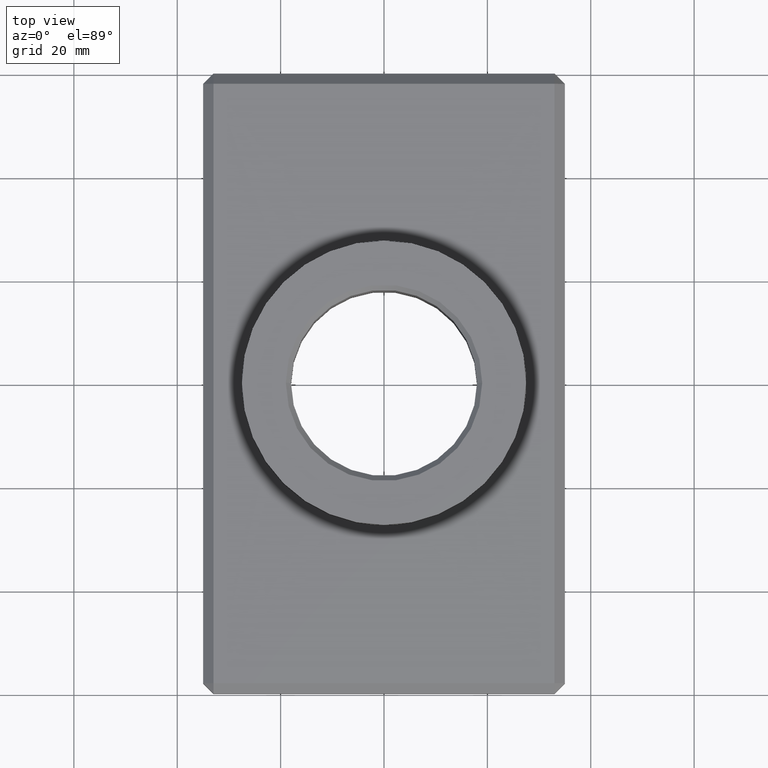
[diagram: clean part render]
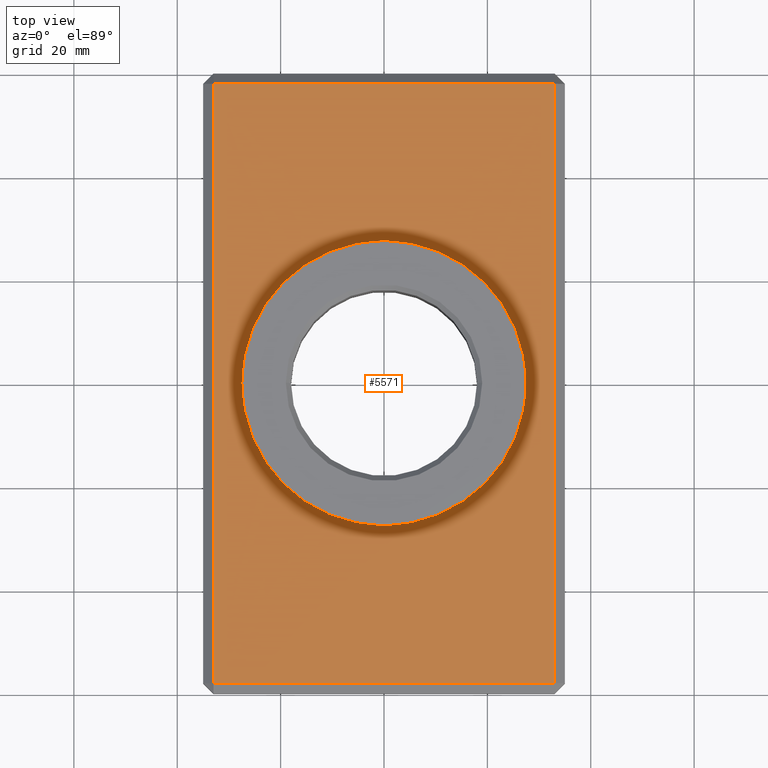
[diagram: same view with one face highlighted and labeled with its STEP entity id]
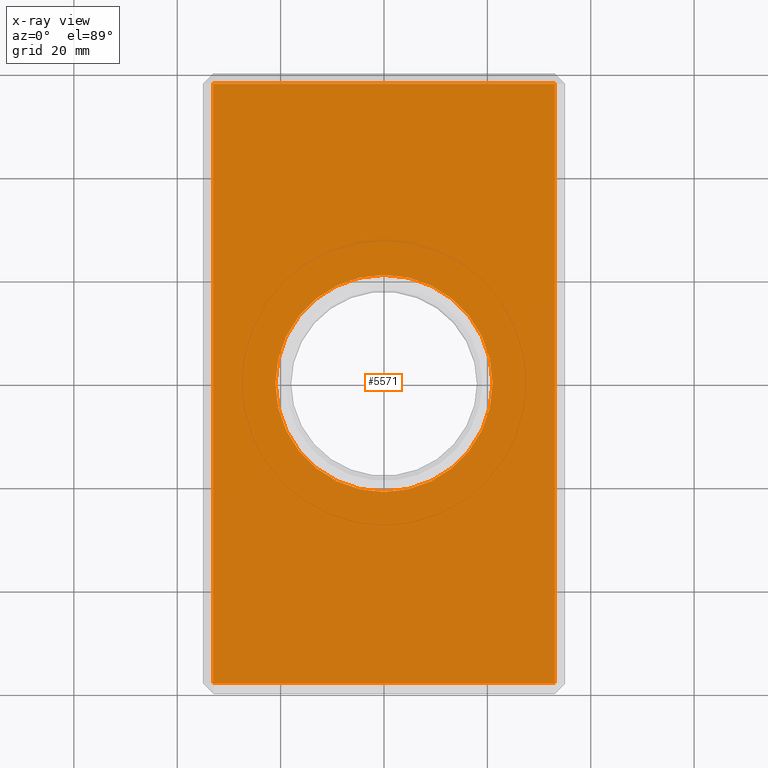
[diagram: x-ray of the same camera — body ghosted, the highlighted face saturated]
A machine part, top view. The second image highlights one B-rep face of the part: STEP entity #5571.
The next image is the same camera in x-ray: the body ghosted, the highlighted face saturated — about 0% of this face is hidden behind the body in this view.
In plain terms, the highlighted planar face has unit normal (-0, -0, 1).
Its self-contained STEP definition (entity closure, byte-faithful):
#174 = EDGE_LOOP ( 'NONE', ( #9204, #6365 ) ) ;
#390 = PLANE ( 'NONE',  #15116 ) ;
#923 = CARTESIAN_POINT ( 'NONE',  ( -32.99999999999998579, 57.99999999999998579, 6.000000000000009770 ) ) ;
#1205 = VERTEX_POINT ( 'NONE', #10018 ) ;
#1262 = VERTEX_POINT ( 'NONE', #4509 ) ;
#1347 = CARTESIAN_POINT ( 'NONE',  ( 34.99999999999999289, -58.00000000000000000, 5.999999999999986677 ) ) ;
#1350 = VECTOR ( 'NONE', #4708, 1000.000000000000000 ) ;
#1566 = LINE ( 'NONE', #9142, #1350 ) ;
#1677 = ORIENTED_EDGE ( 'NONE', *, *, #11117, .T. ) ;
#1704 = VERTEX_POINT ( 'NONE', #923 ) ;
#2340 = DIRECTION ( 'NONE',  ( 0.000000000000000000, 1.000000000000000000, 1.652117596168387263E-16 ) ) ;
#2607 = FACE_BOUND ( 'NONE', #174, .T. ) ;
#3969 = FACE_OUTER_BOUND ( 'NONE', #8390, .T. ) ;
#4082 = ORIENTED_EDGE ( 'NONE', *, *, #18373, .T. ) ;
#4206 = VERTEX_POINT ( 'NONE', #6979 ) ;
#4475 = VECTOR ( 'NONE', #10929, 1000.000000000000000 ) ;
#4509 = CARTESIAN_POINT ( 'NONE',  ( 0.000000000000000000, -21.00000000000001066, 5.999999999999994671 ) ) ;
#4708 = DIRECTION ( 'NONE',  ( 1.156482317317871478E-16, 1.000000000000000000, 1.879283765641541183E-16 ) ) ;
#4716 = AXIS2_PLACEMENT_3D ( 'NONE', #12904, #11407, #7029 ) ;
#5571 = ADVANCED_FACE ( 'NONE', ( #3969, #2607 ), #390, .T. ) ;
#6251 = LINE ( 'NONE', #13745, #4475 ) ;
#6365 = ORIENTED_EDGE ( 'NONE', *, *, #17132, .T. ) ;
#6653 = DIRECTION ( 'NONE',  ( 0.000000000000000000, 1.836970198721029441E-16, -1.000000000000000000 ) ) ;
#6979 = CARTESIAN_POINT ( 'NONE',  ( 32.99999999999998579, 57.99999999999997868, 6.000000000000009770 ) ) ;
#7029 = DIRECTION ( 'NONE',  ( 0.000000000000000000, 1.000000000000000000, 1.652117596168387263E-16 ) ) ;
#7057 = VERTEX_POINT ( 'NONE', #8108 ) ;
#8108 = CARTESIAN_POINT ( 'NONE',  ( 32.99999999999997158, -58.00000000000000000, 5.999999999999986677 ) ) ;
#8347 = VECTOR ( 'NONE', #15221, 1000.000000000000000 ) ;
#8390 = EDGE_LOOP ( 'NONE', ( #1677, #4082, #17634, #10791 ) ) ;
#9142 = CARTESIAN_POINT ( 'NONE',  ( 32.99999999999998579, 59.99999999999999289, 6.000000000000009770 ) ) ;
#9204 = ORIENTED_EDGE ( 'NONE', *, *, #18092, .T. ) ;
#9468 = LINE ( 'NONE', #1347, #11232 ) ;
#10018 = CARTESIAN_POINT ( 'NONE',  ( -32.99999999999999289, -57.99999999999997868, 5.999999999999986677 ) ) ;
#10213 = DIRECTION ( 'NONE',  ( 0.000000000000000000, -1.000000000000000000, -1.879283765641541183E-16 ) ) ;
#10791 = ORIENTED_EDGE ( 'NONE', *, *, #17163, .T. ) ;
#10899 = CARTESIAN_POINT ( 'NONE',  ( -35.00000000000000000, 57.99999999999998579, 6.000000000000009770 ) ) ;
#10929 = DIRECTION ( 'NONE',  ( -5.782411586589357392E-17, -1.000000000000000000, -1.879283765641541183E-16 ) ) ;
#10978 = EDGE_CURVE ( 'NONE', #7057, #4206, #1566, .T. ) ;
#11101 = AXIS2_PLACEMENT_3D ( 'NONE', #13771, #6653, #2340 ) ;
#11117 = EDGE_CURVE ( 'NONE', #1704, #1205, #6251, .T. ) ;
#11232 = VECTOR ( 'NONE', #12660, 1000.000000000000000 ) ;
#11248 = CARTESIAN_POINT ( 'NONE',  ( 2.571758278209442450E-15, 21.00000000000000355, 6.000000000000001776 ) ) ;
#11407 = DIRECTION ( 'NONE',  ( 0.000000000000000000, 1.836970198721029441E-16, -1.000000000000000000 ) ) ;
#11697 = DIRECTION ( 'NONE',  ( -7.451514665783948658E-32, -1.879283765641541183E-16, 1.000000000000000000 ) ) ;
#12660 = DIRECTION ( 'NONE',  ( 1.000000000000000000, -3.965082230804129727E-16, 1.094764425253763337E-47 ) ) ;
#12904 = CARTESIAN_POINT ( 'NONE',  ( 0.000000000000000000, -3.582091887506006239E-15, 5.999999999999998224 ) ) ;
#13101 = CIRCLE ( 'NONE', #11101, 21.00000000000000711 ) ;
#13745 = CARTESIAN_POINT ( 'NONE',  ( -32.99999999999999289, -59.99999999999999289, 5.999999999999986677 ) ) ;
#13771 = CARTESIAN_POINT ( 'NONE',  ( 0.000000000000000000, -3.582091887506006239E-15, 5.999999999999998224 ) ) ;
#14562 = VERTEX_POINT ( 'NONE', #11248 ) ;
#15031 = LINE ( 'NONE', #10899, #8347 ) ;
#15116 = AXIS2_PLACEMENT_3D ( 'NONE', #15877, #11697, #10213 ) ;
#15221 = DIRECTION ( 'NONE',  ( -1.000000000000000000, 1.982541115402064863E-16, -3.725757332891974876E-32 ) ) ;
#15877 = CARTESIAN_POINT ( 'NONE',  ( -4.470908799470367443E-31, -1.127570259384924414E-15, 5.999999999999998224 ) ) ;
#17035 = CIRCLE ( 'NONE', #4716, 21.00000000000000711 ) ;
#17132 = EDGE_CURVE ( 'NONE', #14562, #1262, #13101, .T. ) ;
#17163 = EDGE_CURVE ( 'NONE', #4206, #1704, #15031, .T. ) ;
#17634 = ORIENTED_EDGE ( 'NONE', *, *, #10978, .T. ) ;
#18092 = EDGE_CURVE ( 'NONE', #1262, #14562, #17035, .T. ) ;
#18373 = EDGE_CURVE ( 'NONE', #1205, #7057, #9468, .T. ) ;